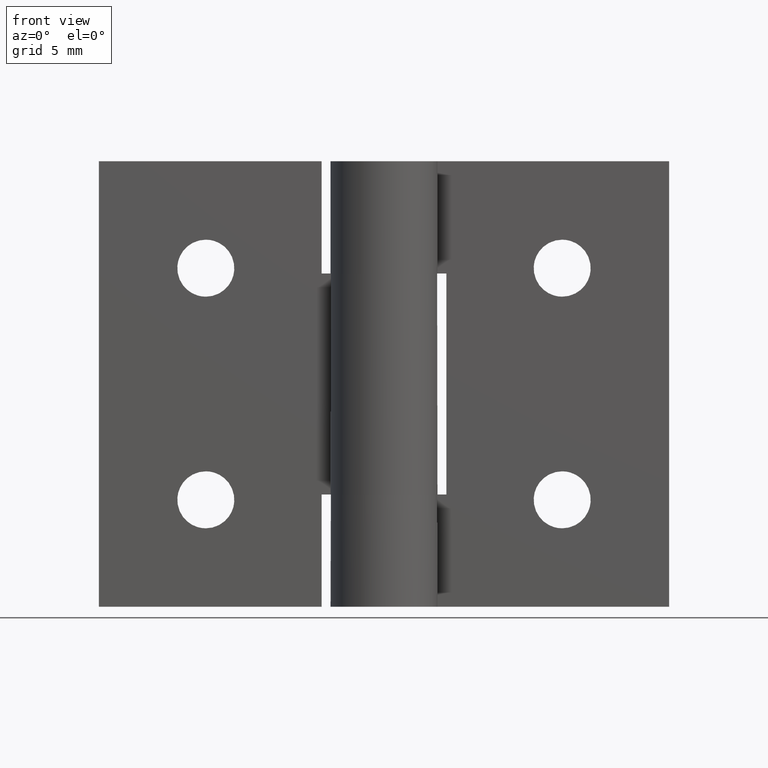
[diagram: clean part render]
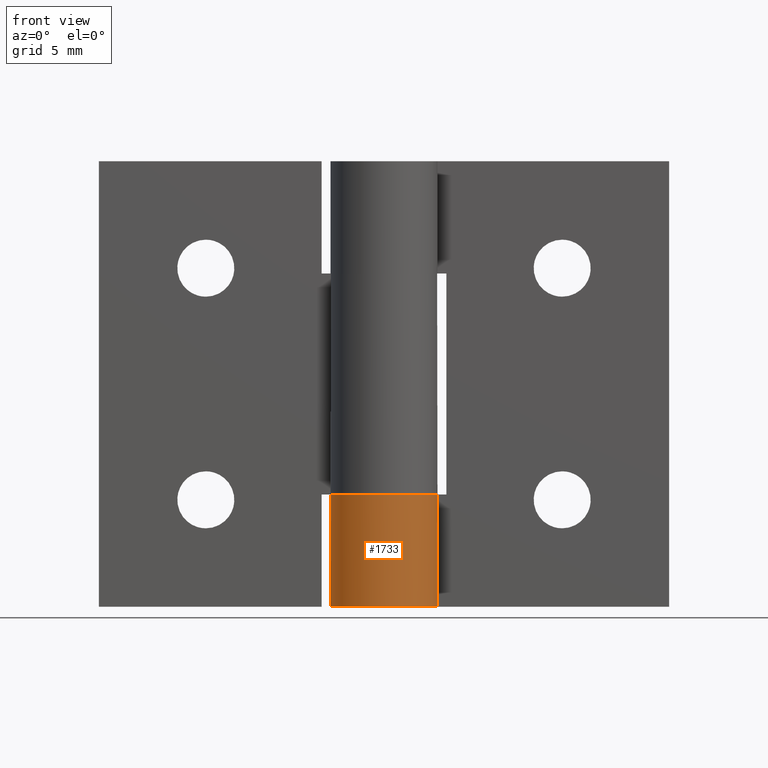
[diagram: same view with one face highlighted and labeled with its STEP entity id]
A machine part, front view. The second image highlights one B-rep face of the part: STEP entity #1733.
In plain terms, the highlighted face is a freeform B-spline surface patch.
Its self-contained STEP definition (entity closure, byte-faithful):
#1257=CARTESIAN_POINT('',(0.0,3.0,6.300003000000000));
#1258=VERTEX_POINT('',#1257);
#1264=CARTESIAN_POINT('',(2.626309197333775,1.450000000000000,6.300003000000000));
#1265=VERTEX_POINT('',#1264);
#1266=CARTESIAN_POINT('',(0.0,3.0,6.300003000000000));
#1267=CARTESIAN_POINT('',(-2.290598042424808,3.0,6.300003000000000));
#1268=CARTESIAN_POINT('',(-2.894028888043301,0.790314364775724,6.300003000000000));
#1269=CARTESIAN_POINT('',(-3.497459733661794,-1.419371270448551,6.300003000000000));
#1270=CARTESIAN_POINT('',(-1.524795068197691,-2.583602136552762,6.300003000000000));
#1271=CARTESIAN_POINT('',(0.447869597266412,-3.747833002656974,6.300003000000000));
#1272=CARTESIAN_POINT('',(2.090650590886091,-2.151552952364324,6.300003000000000));
#1273=CARTESIAN_POINT('',(3.733431584505770,-0.555272902071674,6.300003000000000));
#1274=CARTESIAN_POINT('',(2.626309197333779,1.450000000000001,6.300003000000000));
#1282=(BOUNDED_CURVE()B_SPLINE_CURVE(2,(#1266,#1267,#1268,#1269,#1270,#1271,#1272,#1273,#1274),.UNSPECIFIED.,.F.,.U.)B_SPLINE_CURVE_WITH_KNOTS((3,2,2,2,3),(0.0,0.250000000000000,0.500000000000000,0.750000000000000,1.0),.UNSPECIFIED.)CURVE()GEOMETRIC_REPRESENTATION_ITEM()RATIONAL_B_SPLINE_CURVE((1.0,0.794807562115481,1.0,0.794807562115481,1.0,0.794807562115481,1.0,0.794807562115481,1.0))REPRESENTATION_ITEM(''));
#1283=EDGE_CURVE('',#1258,#1265,#1282,.T.);
#1447=CARTESIAN_POINT('',(2.626309197333775,1.450000000000000,0.0));
#1448=VERTEX_POINT('',#1447);
#1454=CARTESIAN_POINT('',(0.0,3.0,0.0));
#1455=VERTEX_POINT('',#1454);
#1456=CARTESIAN_POINT('',(2.626309197333778,1.450000000000002,0.0));
#1457=CARTESIAN_POINT('',(3.733431584505770,-0.555272902071671,0.0));
#1458=CARTESIAN_POINT('',(2.090650590886093,-2.151552952364322,0.0));
#1459=CARTESIAN_POINT('',(0.447869597266415,-3.747833002656973,0.0));
#1460=CARTESIAN_POINT('',(-1.524795068197689,-2.583602136552764,0.0));
#1461=CARTESIAN_POINT('',(-3.497459733661794,-1.419371270448554,0.0));
#1462=CARTESIAN_POINT('',(-2.894028888043301,0.790314364775722,0.0));
#1463=CARTESIAN_POINT('',(-2.290598042424809,3.0,0.0));
#1464=CARTESIAN_POINT('',(0.0,3.0,0.0));
#1472=(BOUNDED_CURVE()B_SPLINE_CURVE(2,(#1456,#1457,#1458,#1459,#1460,#1461,#1462,#1463,#1464),.UNSPECIFIED.,.F.,.U.)B_SPLINE_CURVE_WITH_KNOTS((3,2,2,2,3),(0.0,0.250000000000000,0.500000000000000,0.750000000000000,1.0),.UNSPECIFIED.)CURVE()GEOMETRIC_REPRESENTATION_ITEM()RATIONAL_B_SPLINE_CURVE((1.0,0.794807562115481,1.0,0.794807562115481,1.0,0.794807562115481,1.0,0.794807562115481,1.0))REPRESENTATION_ITEM(''));
#1473=EDGE_CURVE('',#1448,#1455,#1472,.T.);
#1586=CARTESIAN_POINT('',(2.626309197333775,1.450000000000000,6.300003000000000));
#1587=CARTESIAN_POINT('',(2.626309197333775,1.450000000000000,0.0));
#1588=QUASI_UNIFORM_CURVE('',1,(#1586,#1587),.UNSPECIFIED.,.F.,.U.);
#1589=EDGE_CURVE('',#1265,#1448,#1588,.T.);
#1701=CARTESIAN_POINT('',(0.026179606495119,2.999885769192513,6.457503075000002));
#1702=CARTESIAN_POINT('',(0.026179606495119,2.999885769192513,-0.161437576875000));
#1703=CARTESIAN_POINT('',(-3.591480617393748,3.031456611678275,6.457503075000002));
#1704=CARTESIAN_POINT('',(-3.591480617393748,3.031456611678275,-0.161437576875001));
#1705=CARTESIAN_POINT('',(-2.952895395395788,-0.529536385766218,6.457503075000002));
#1706=CARTESIAN_POINT('',(-2.952895395395788,-0.529536385766218,-0.161437576875000));
#1707=CARTESIAN_POINT('',(-2.314310173397830,-4.090529383210711,6.457503075000002));
#1708=CARTESIAN_POINT('',(-2.314310173397830,-4.090529383210711,-0.161437576875001));
#1709=CARTESIAN_POINT('',(1.066952285444628,-2.803856776046965,6.457503075000002));
#1710=CARTESIAN_POINT('',(1.066952285444628,-2.803856776046965,-0.161437576875000));
#1711=CARTESIAN_POINT('',(4.448214744287087,-1.517184168883220,6.457503075000002));
#1712=CARTESIAN_POINT('',(4.448214744287087,-1.517184168883220,-0.161437576875001));
#1713=CARTESIAN_POINT('',(2.557920493062278,1.567495694147844,6.457503075000002));
#1714=CARTESIAN_POINT('',(2.557920493062278,1.567495694147844,-0.161437576875000));
#1722=(BOUNDED_SURFACE()B_SPLINE_SURFACE(1,2,((#1701,#1703,#1705,#1707,#1709,#1711,#1713),(#1702,#1704,#1706,#1708,#1710,#1712,#1714)),.UNSPECIFIED.,.F.,.F.,.U.)B_SPLINE_SURFACE_WITH_KNOTS((2,2),(3,2,2,3),(0.0,6.618940651875003),(0.0,5.638246512160404,11.276493024320811,16.914739536481211),.UNSPECIFIED.)GEOMETRIC_REPRESENTATION_ITEM()RATIONAL_B_SPLINE_SURFACE(((1.0,0.638320090924328,1.0,0.638320090924328,1.0,0.638320090924328,1.0),(1.0,0.638320090924328,1.0,0.638320090924328,1.0,0.638320090924328,1.0)))REPRESENTATION_ITEM('')SURFACE());
#1723=ORIENTED_EDGE('',*,*,#1589,.F.);
#1724=ORIENTED_EDGE('',*,*,#1283,.F.);
#1725=CARTESIAN_POINT('',(0.0,3.0,6.300003000000000));
#1726=CARTESIAN_POINT('',(0.0,3.0,0.0));
#1727=QUASI_UNIFORM_CURVE('',1,(#1725,#1726),.UNSPECIFIED.,.F.,.U.);
#1728=EDGE_CURVE('',#1258,#1455,#1727,.T.);
#1729=ORIENTED_EDGE('',*,*,#1728,.T.);
#1730=ORIENTED_EDGE('',*,*,#1473,.F.);
#1731=EDGE_LOOP('',(#1723,#1724,#1729,#1730));
#1732=FACE_OUTER_BOUND('',#1731,.T.);
#1733=ADVANCED_FACE('',(#1732),#1722,.T.);